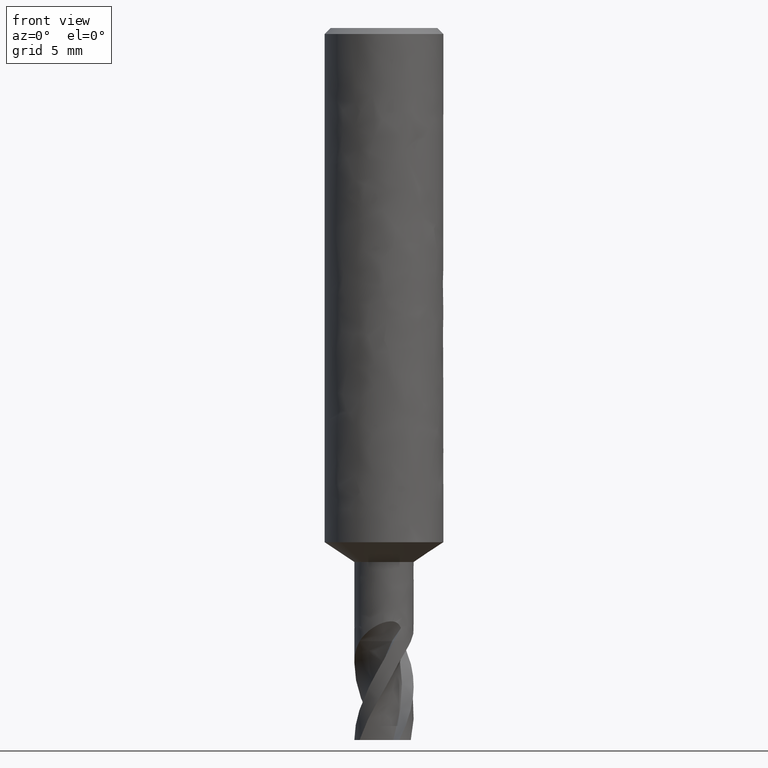
[diagram: clean part render]
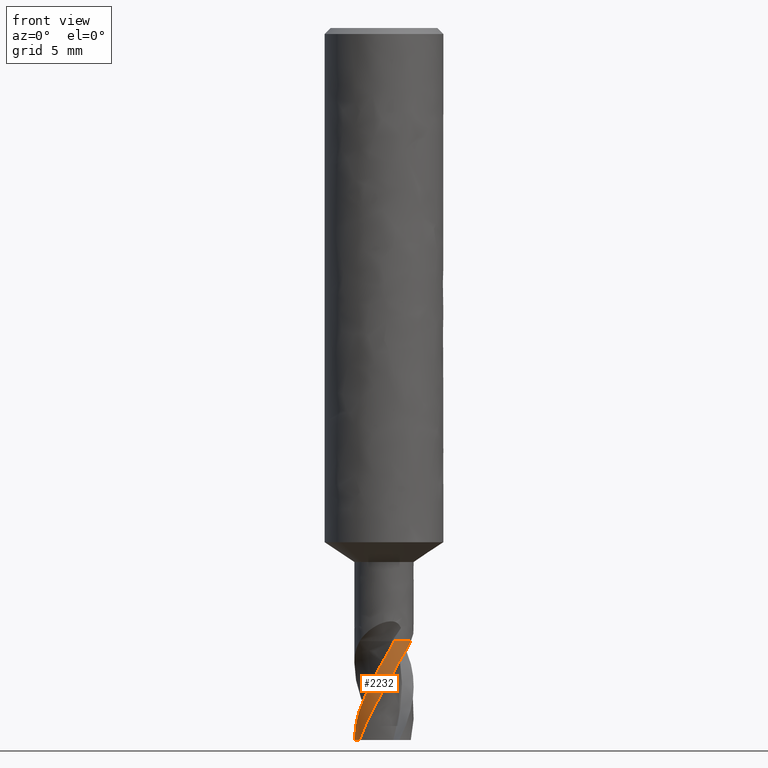
[diagram: same view with one face highlighted and labeled with its STEP entity id]
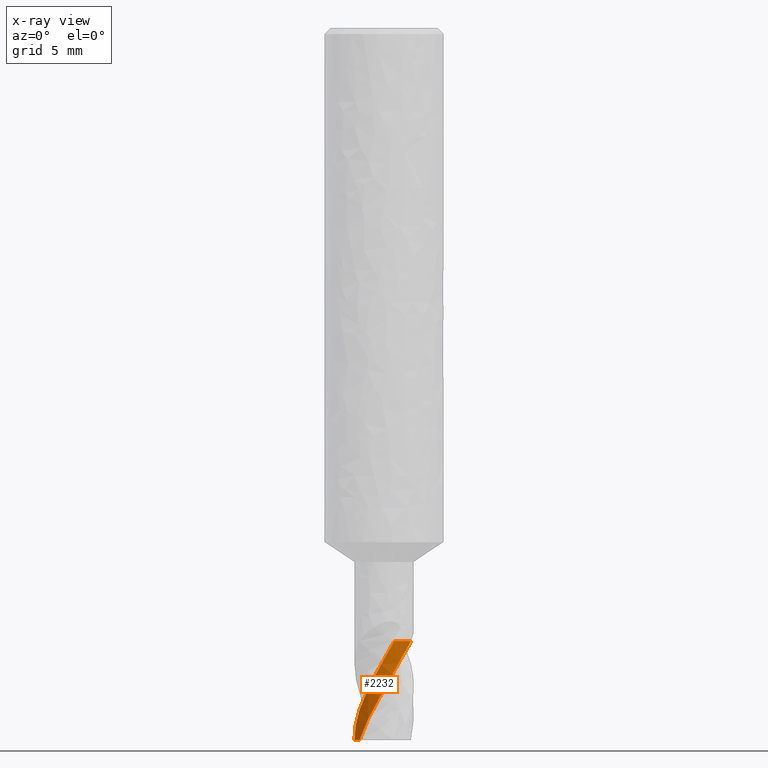
[diagram: x-ray of the same camera — body ghosted, the highlighted face saturated]
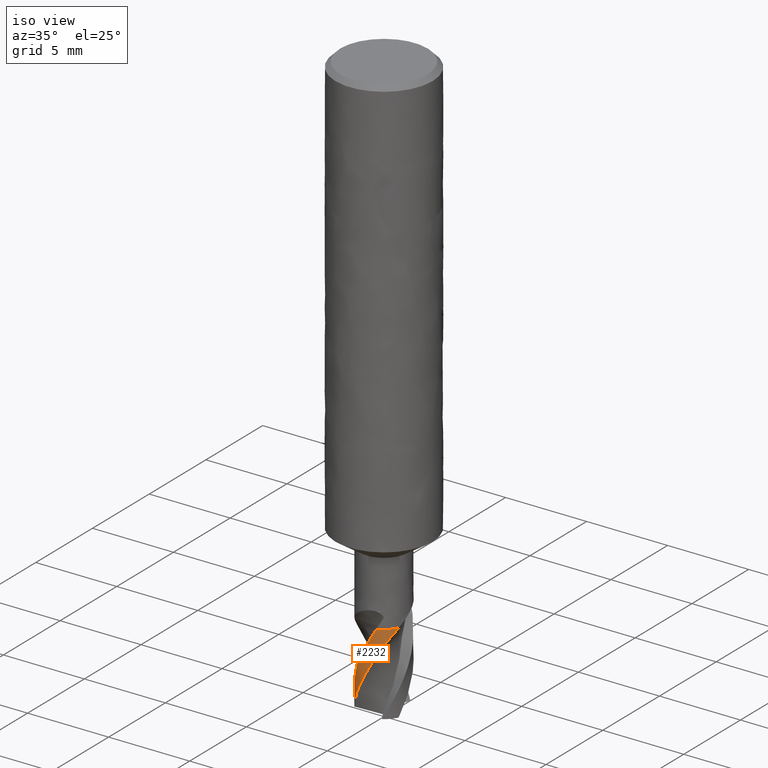
[diagram: same view with one face highlighted and labeled with its STEP entity id]
A machine part, front view. The second image highlights one B-rep face of the part: STEP entity #2232.
The next image is the same camera in x-ray: the body ghosted, the highlighted face saturated — about 0% of this face is hidden behind the body in this view.
A second angle (iso view) of the same face is appended — the face is thin or edge-on in the first view.
In plain terms, the highlighted face is a freeform B-spline surface patch.
Its self-contained STEP definition (entity closure, byte-faithful):
#1099 = VERTEX_POINT('', #1100);
#1100 = CARTESIAN_POINT('', (0.519565172584948, -1.40714321639155, -31.));
#1106 = EDGE_CURVE('', #1107, #1099, #1109, .T.);
#1107 = VERTEX_POINT('', #1108);
#1108 = CARTESIAN_POINT('', (1.36022073999418, -0.632297033434184, -31.));
#1109 = CIRCLE('', #1110, 1.5);
#1110 = AXIS2_PLACEMENT_3D('', #1111, #1112, #1113);
#1111 = CARTESIAN_POINT('', (1.16231383156294E-31, 1.8982025386784E-15, -31.));
#1112 = DIRECTION('', (3.74939945665464E-33, 6.12323399573677E-17, -1.));
#1113 = DIRECTION('', (-1., 6.12323399573677E-17, 0.));
#1208 = VERTEX_POINT('', #1209);
#1209 = CARTESIAN_POINT('', (-1.49972769564766, -0.0285803937580209, -36.));
#1215 = EDGE_CURVE('', #1099, #1208, #1216, .T.);
#1216 = B_SPLINE_CURVE_WITH_KNOTS('', 3, (#1217, #1218, #1219, #1220, #1221, #1222, #1223, #1224, #1225, #1226, #1227, #1228, #1229, #1230, #1231, #1232, #1233, #1234, #1235, #1236, #1237, #1238, #1239, #1240, #1241, #1242, #1243, #1244, #1245, #1246, #1247, #1248, #1249, #1250, #1251, #1252, #1253, #1254, #1255, #1256, #1257, #1258, #1259, #1260, #1261, #1262, #1263, #1264, #1265, #1266, #1267, #1268, #1269, #1270, #1271, #1272, #1273, #1274, #1275, #1276, #1277, #1278, #1279, #1280, #1281, #1282, #1283, #1284, #1285, #1286, #1287, #1288, #1289, #1290, #1291, #1292, #1293, #1294, #1295, #1296, #1297, #1298, #1299, #1300, #1301, #1302, #1303, #1304, #1305, #1306, #1307, #1308, #1309, #1310), .UNSPECIFIED., .F., .U., (4, 3, 3, 3, 3, 3, 3, 3, 3, 3, 3, 3, 3, 3, 3, 3, 3, 3, 3, 3, 3, 3, 3, 3, 3, 3, 3, 3, 3, 3, 3, 4), (0.768501381046993, 0.787621328248756, 0.984491242477379, 1.1813511806186, 1.37819928503718, 1.57503737531839, 1.77186371725637, 1.8302237921103, 1.85617344529091, 2.05363069041709, 2.18515290317052, 2.38257741871908, 2.47022110331767, 2.60171329868226, 2.73315036704322, 2.79155226759369, 2.98878190034154, 3.12021588305204, 3.31736340760702, 3.44877068611248, 3.64589925562191, 3.77729199887385, 4.0729336341522, 4.36850125245069, 4.66398190823514, 4.95937529253543, 5.25468283164491, 5.54990303473267, 5.84503520668598, 6.14007769343906, 6.4350286158841, 6.5274034703753), .UNSPECIFIED.);
#1217 = CARTESIAN_POINT('', (0.519565172584948, -1.40714321639155, -31.));
#1218 = CARTESIAN_POINT('', (0.516598008742798, -1.40823879427998, -31.0055330643651));
#1219 = CARTESIAN_POINT('', (0.513627261036039, -1.40932503037065, -31.0110663177041));
#1220 = CARTESIAN_POINT('', (0.510653202697279, -1.41040182450783, -31.0165993679323));
#1221 = CARTESIAN_POINT('', (0.480030596688795, -1.42148911293971, -31.0735708183426));
#1222 = CARTESIAN_POINT('', (0.449042877992487, -1.43157991937438, -31.1305498089965));
#1223 = CARTESIAN_POINT('', (0.417765001046068, -1.44064999354492, -31.1875221381892));
#1224 = CARTESIAN_POINT('', (0.386488709059115, -1.44971960810306, -31.2444915803947));
#1225 = CARTESIAN_POINT('', (0.35491168321503, -1.45777167028656, -31.3014677794902));
#1226 = CARTESIAN_POINT('', (0.323110171113776, -1.46478661153181, -31.3584365088185));
#1227 = CARTESIAN_POINT('', (0.291310570677624, -1.47180113109212, -31.41540181362));
#1228 = CARTESIAN_POINT('', (0.259280105780983, -1.47778016346086, -31.4723756120965));
#1229 = CARTESIAN_POINT('', (0.227091902847815, -1.48271010911134, -31.5293412091837));
#1230 = CARTESIAN_POINT('', (0.194905337406087, -1.48763980396362, -31.5863039082938));
#1231 = CARTESIAN_POINT('', (0.162552880997185, -1.49152162906105, -31.6432734159033));
#1232 = CARTESIAN_POINT('', (0.130114760470109, -1.49434606069272, -31.7002367102146));
#1233 = CARTESIAN_POINT('', (0.0976785760224425, -1.4971703237473, -31.7571966046538));
#1234 = CARTESIAN_POINT('', (0.0651466679156231, -1.49893833661976, -31.8141642211957));
#1235 = CARTESIAN_POINT('', (0.0325932540912833, -1.49964585145554, -31.8711228620589));
#1236 = CARTESIAN_POINT('', (0.0229409908381358, -1.49985563343071, -31.8880114071166));
#1237 = CARTESIAN_POINT('', (0.0132863911575863, -1.49997222935255, -31.9049000316));
#1238 = CARTESIAN_POINT('', (0.00363152334460524, -1.49999560400629, -31.921788374612));
#1239 = CARTESIAN_POINT('', (-0.000661488134194145, -1.50000599748435, -31.9292977317376));
#1240 = CARTESIAN_POINT('', (-0.00495458293201346, -1.49999796085963, -31.9368070893563));
#1241 = CARTESIAN_POINT('', (-0.0092475742648674, -1.49997149385254, -31.9443164185497));
#1242 = CARTESIAN_POINT('', (-0.0419139931967877, -1.4997700999352, -32.0014567373416));
#1243 = CARTESIAN_POINT('', (-0.0745798008518828, -1.49850083370283, -32.0586035949255));
#1244 = CARTESIAN_POINT('', (-0.107159706427344, -1.49616736942052, -32.1157460153687));
#1245 = CARTESIAN_POINT('', (-0.12886051193511, -1.49461309682043, -32.1538074072107));
#1246 = CARTESIAN_POINT('', (-0.150525557238404, -1.4925866876458, -32.1918728458256));
#1247 = CARTESIAN_POINT('', (-0.1721296172405, -1.49009106932048, -32.2299391925449));
#1248 = CARTESIAN_POINT('', (-0.204558900404946, -1.48634496264726, -32.2870795789665));
#1249 = CARTESIAN_POINT('', (-0.236860732245523, -1.48154115446041, -32.344232920219));
#1250 = CARTESIAN_POINT('', (-0.268999143362233, -1.47568271009409, -32.401360117268));
#1251 = CARTESIAN_POINT('', (-0.283266514157529, -1.47308194063619, -32.4267208888331));
#1252 = CARTESIAN_POINT('', (-0.297503127992152, -1.47027301038832, -32.4520784957484));
#1253 = CARTESIAN_POINT('', (-0.311706359453727, -1.46725565102885, -32.4774291242238));
#1254 = CARTESIAN_POINT('', (-0.333015528445282, -1.46272869385906, -32.5154627806976));
#1255 = CARTESIAN_POINT('', (-0.354243361637961, -1.4577329487887, -32.5534891656637));
#1256 = CARTESIAN_POINT('', (-0.375315915249576, -1.45228714920995, -32.5915341889955));
#1257 = CARTESIAN_POINT('', (-0.396379634369257, -1.44684363273715, -32.6295632622694));
#1258 = CARTESIAN_POINT('', (-0.417290981154667, -1.44095082335471, -32.6676153382769));
#1259 = CARTESIAN_POINT('', (-0.438048312658804, -1.43461272675826, -32.7056742960816));
#1260 = CARTESIAN_POINT('', (-0.447271491669984, -1.43179649773154, -32.7225851683072));
#1261 = CARTESIAN_POINT('', (-0.456465626213576, -1.42889193641227, -32.7394974270955));
#1262 = CARTESIAN_POINT('', (-0.465634534965191, -1.42589778029414, -32.7564072442996));
#1263 = CARTESIAN_POINT('', (-0.496598946889024, -1.41578618621924, -32.8135135542926));
#1264 = CARTESIAN_POINT('', (-0.527281124128524, -1.40464958602337, -32.8706013520246));
#1265 = CARTESIAN_POINT('', (-0.55758896020156, -1.39251375270097, -32.9276655825345));
#1266 = CARTESIAN_POINT('', (-0.577786126047875, -1.38442642381002, -32.9656932307216));
#1267 = CARTESIAN_POINT('', (-0.597818191222467, -1.37589490385669, -33.0037170454686));
#1268 = CARTESIAN_POINT('', (-0.617645335344269, -1.36693607741089, -33.0417440912143));
#1269 = CARTESIAN_POINT('', (-0.647385531159668, -1.35349807286835, -33.0987836618056));
#1270 = CARTESIAN_POINT('', (-0.676672511168492, -1.33909567743045, -33.1558422335259));
#1271 = CARTESIAN_POINT('', (-0.705444465472539, -1.32376285872287, -33.2129005470522));
#1272 = CARTESIAN_POINT('', (-0.724622206714347, -1.31354287760605, -33.2509323595923));
#1273 = CARTESIAN_POINT('', (-0.743574668009519, -1.30290786316739, -33.2889691722817));
#1274 = CARTESIAN_POINT('', (-0.762289363522633, -1.29186490248023, -33.3270016022508));
#1275 = CARTESIAN_POINT('', (-0.79036392071051, -1.27529897806442, -33.3840553560463));
#1276 = CARTESIAN_POINT('', (-0.817912132523037, -1.25780907609524, -33.4411097403212));
#1277 = CARTESIAN_POINT('', (-0.844864039664297, -1.23943727331484, -33.4981519439888));
#1278 = CARTESIAN_POINT('', (-0.86282838153506, -1.22719185616496, -33.5361724685615));
#1279 = CARTESIAN_POINT('', (-0.880528356440532, -1.21455435555817, -33.574194559171));
#1280 = CARTESIAN_POINT('', (-0.897939790662919, -1.20154239723125, -33.6122176969641));
#1281 = CARTESIAN_POINT('', (-0.937116572870576, -1.17226470241545, -33.6977720613629));
#1282 = CARTESIAN_POINT('', (-0.974865871281235, -1.14106465692026, -33.7833556281191));
#1283 = CARTESIAN_POINT('', (-1.01099605605404, -1.10810061575796, -33.8689099072879));
#1284 = CARTESIAN_POINT('', (-1.04711719525667, -1.07514482748863, -33.9544427670469));
#1285 = CARTESIAN_POINT('', (-1.08163364989689, -1.04041295868177, -34.0400023229387));
#1286 = CARTESIAN_POINT('', (-1.11436197833337, -1.00409032524218, -34.1255371906481));
#1287 = CARTESIAN_POINT('', (-1.14708067737357, -0.967778378722687, -34.2110468921123));
#1288 = CARTESIAN_POINT('', (-1.17803343485968, -0.929852962291481, -34.296580459638));
#1289 = CARTESIAN_POINT('', (-1.20705277955805, -0.890518718141943, -34.3820887904712));
#1290 = CARTESIAN_POINT('', (-1.23606355326801, -0.851196091530805, -34.4675718660507));
#1291 = CARTESIAN_POINT('', (-1.26315841730939, -0.810443457069367, -34.5530806360299));
#1292 = CARTESIAN_POINT('', (-1.28819286356161, -0.768478461811996, -34.6385643528377));
#1293 = CARTESIAN_POINT('', (-1.31322003447549, -0.72652566213251, -34.7240232269564));
#1294 = CARTESIAN_POINT('', (-1.33620282667445, -0.683336260656685, -34.8095070134624));
#1295 = CARTESIAN_POINT('', (-1.35701804766202, -0.639141626182771, -34.8949656391797));
#1296 = CARTESIAN_POINT('', (-1.37782711263137, -0.594960062094963, -34.9803989908509));
#1297 = CARTESIAN_POINT('', (-1.39648196313864, -0.549748252607596, -35.0658574945466));
#1298 = CARTESIAN_POINT('', (-1.41288285932973, -0.503747978469632, -35.1512909233158));
#1299 = CARTESIAN_POINT('', (-1.4292788649697, -0.457761421063365, -35.2366988768582));
#1300 = CARTESIAN_POINT('', (-1.44343184502994, -0.410959978796243, -35.3221318751568));
#1301 = CARTESIAN_POINT('', (-1.45526611849859, -0.363593900320229, -35.4075398113957));
#1302 = CARTESIAN_POINT('', (-1.46709679575074, -0.316242215518085, -35.4929217937449));
#1303 = CARTESIAN_POINT('', (-1.47661707055738, -0.268298671370086, -35.5783288488748));
#1304 = CARTESIAN_POINT('', (-1.48377609867051, -0.220019292368183, -35.6637108128214));
#1305 = CARTESIAN_POINT('', (-1.4909329050309, -0.171754896523384, -35.7490662790913));
#1306 = CARTESIAN_POINT('', (-1.49573406002889, -0.123127057348932, -35.8344468952546));
#1307 = CARTESIAN_POINT('', (-1.49815398246934, -0.0743951934703049, -35.9198024857217));
#1308 = CARTESIAN_POINT('', (-1.4989118712105, -0.0591329973138855, -35.9465347643802));
#1309 = CARTESIAN_POINT('', (-1.49943653500875, -0.0438587582817177, -35.9732677993404));
#1310 = CARTESIAN_POINT('', (-1.49972769564767, -0.0285803937580211, -36.));
#2090 = EDGE_CURVE('', #2091, #1107, #2093, .T.);
#2091 = VERTEX_POINT('', #2092);
#2092 = CARTESIAN_POINT('', (-1.23449274922675, -0.852072562700247, -36.));
#2093 = B_SPLINE_CURVE_WITH_KNOTS('', 3, (#2094, #2095, #2096, #2097, #2098, #2099, #2100, #2101, #2102, #2103, #2104, #2105, #2106, #2107, #2108, #2109, #2110, #2111, #2112, #2113, #2114, #2115, #2116, #2117, #2118, #2119, #2120, #2121, #2122, #2123, #2124, #2125, #2126, #2127, #2128, #2129, #2130, #2131, #2132, #2133, #2134, #2135, #2136, #2137, #2138, #2139, #2140, #2141, #2142, #2143, #2144, #2145, #2146, #2147, #2148, #2149, #2150, #2151, #2152, #2153, #2154, #2155, #2156, #2157, #2158, #2159, #2160, #2161, #2162, #2163, #2164, #2165, #2166, #2167, #2168, #2169, #2170, #2171, #2172, #2173, #2174, #2175, #2176, #2177, #2178, #2179, #2180, #2181), .UNSPECIFIED., .F., .U., (4, 3, 3, 3, 3, 3, 3, 3, 3, 3, 3, 3, 3, 3, 3, 3, 3, 3, 3, 3, 3, 3, 3, 3, 3, 3, 3, 3, 3, 4), (0., 0.443551327460082, 0.886815208005312, 1.32979048099039, 1.62508757993182, 1.92029650650715, 2.21541123460587, 2.51043906458645, 2.80535690891399, 2.89287206786104, 2.93178663359982, 3.12912659365995, 3.32644144242942, 3.45792191154265, 3.58937974088454, 3.7208139609312, 3.8084230957714, 3.89604766281326, 3.98367620830002, 4.07129519907452, 4.26859639564497, 4.4000805600953, 4.59746002001388, 4.79487363237326, 4.99234125961448, 5.18987476159806, 5.38746919370108, 5.58512309232445, 5.78282244638992, 5.93182391505246), .UNSPECIFIED.);
#2094 = CARTESIAN_POINT('', (-1.23449274922675, -0.852072562700249, -36.));
#2095 = CARTESIAN_POINT('', (-1.19303983087478, -0.912130038295546, -35.8714134201064));
#2096 = CARTESIAN_POINT('', (-1.14712450131491, -0.969254419380716, -35.7427846002988));
#2097 = CARTESIAN_POINT('', (-1.09725835859125, -1.02275319334707, -35.6142894551085));
#2098 = CARTESIAN_POINT('', (-1.04742453201229, -1.07621729701357, -35.4858775822044));
#2099 = CARTESIAN_POINT('', (-0.993584738664941, -1.12612379572556, -35.3574274196058));
#2100 = CARTESIAN_POINT('', (-0.936360126938721, -1.1718488437846, -35.2291075320284));
#2101 = CARTESIAN_POINT('', (-0.879172773956775, -1.21754412042499, -35.1008711930803));
#2102 = CARTESIAN_POINT('', (-0.818530174369723, -1.25912291270886, -34.9725963144207));
#2103 = CARTESIAN_POINT('', (-0.755141652331049, -1.29605597290969, -34.8444524319561));
#2104 = CARTESIAN_POINT('', (-0.712885463767593, -1.3206763664112, -34.7590288901772));
#2105 = CARTESIAN_POINT('', (-0.669380627423743, -1.3432528506502, -34.6736002961151));
#2106 = CARTESIAN_POINT('', (-0.624856420414502, -1.36365481477785, -34.5882171268833));
#2107 = CARTESIAN_POINT('', (-0.580345507828723, -1.38405068711029, -34.5028594520979));
#2108 = CARTESIAN_POINT('', (-0.534786889579081, -1.40228655298752, -34.4174981681706));
#2109 = CARTESIAN_POINT('', (-0.488422609596375, -1.41825362838781, -34.3321837400999));
#2110 = CARTESIAN_POINT('', (-0.44207312403264, -1.43421560883995, -34.2468965350852));
#2111 = CARTESIAN_POINT('', (-0.394895394894266, -1.44791794092843, -34.1616025714923));
#2112 = CARTESIAN_POINT('', (-0.347148959734088, -1.45927639594282, -34.076348654278));
#2113 = CARTESIAN_POINT('', (-0.299416583768416, -1.47063150639906, -33.9911198405379));
#2114 = CARTESIAN_POINT('', (-0.25107288789056, -1.47965566708625, -33.9058885457293));
#2115 = CARTESIAN_POINT('', (-0.202344261833272, -1.4862896082877, -33.8207252862388));
#2116 = CARTESIAN_POINT('', (-0.15363380168853, -1.49292107637212, -33.735593775403));
#2117 = CARTESIAN_POINT('', (-0.104539056615796, -1.49715835123536, -33.650461524115));
#2118 = CARTESIAN_POINT('', (-0.0554651758842861, -1.49897418732455, -33.5652998167408));
#2119 = CARTESIAN_POINT('', (-0.0409027865444364, -1.49951302614704, -33.5400285742561));
#2120 = CARTESIAN_POINT('', (-0.026341186406192, -1.49983919531586, -33.5147514471175));
#2121 = CARTESIAN_POINT('', (-0.0117996314296986, -1.49995358884804, -33.489462727888));
#2122 = CARTESIAN_POINT('', (-0.00533357110500454, -1.50000445517431, -33.4782178242765));
#2123 = CARTESIAN_POINT('', (0.00112865298420813, -1.50001347233947, -33.4669704465807));
#2124 = CARTESIAN_POINT('', (0.00758543169413701, -1.49998082028605, -33.4557201433283));
#2125 = CARTESIAN_POINT('', (0.0403284529393835, -1.49981523820143, -33.3986686421139));
#2126 = CARTESIAN_POINT('', (0.0729318840855446, -1.49857540633824, -33.341529901001));
#2127 = CARTESIAN_POINT('', (0.105214316107934, -1.49630543261932, -33.2842612494494));
#2128 = CARTESIAN_POINT('', (0.137492640226716, -1.49403574775202, -33.2269998852701));
#2129 = CARTESIAN_POINT('', (0.169479118790942, -1.49073836927154, -33.1696054187544));
#2130 = CARTESIAN_POINT('', (0.20119085816496, -1.48644617749551, -33.1121437081932));
#2131 = CARTESIAN_POINT('', (0.222321930637684, -1.48358608160432, -33.073854179008));
#2132 = CARTESIAN_POINT('', (0.243337425631322, -1.48028275741953, -33.0355312838727));
#2133 = CARTESIAN_POINT('', (0.264222287505547, -1.47654548957536, -32.9971822840013));
#2134 = CARTESIAN_POINT('', (0.285103553191681, -1.47280886525558, -32.9588398874878));
#2135 = CARTESIAN_POINT('', (0.305842866847965, -1.46863943067573, -32.9204595466357));
#2136 = CARTESIAN_POINT('', (0.326354594489351, -1.4640671701311, -32.882008376939));
#2137 = CARTESIAN_POINT('', (0.346862638307293, -1.459495730746, -32.8435641129171));
#2138 = CARTESIAN_POINT('', (0.367145382709754, -1.45452127117127, -32.8050446019684));
#2139 = CARTESIAN_POINT('', (0.387129406072301, -1.44918281212348, -32.7664236358914));
#2140 = CARTESIAN_POINT('', (0.400450008551606, -1.44562439500509, -32.7406803445059));
#2141 = CARTESIAN_POINT('', (0.413624355059637, -1.44190912103902, -32.7148824417564));
#2142 = CARTESIAN_POINT('', (0.42673481008369, -1.43801856798264, -32.6890793915464));
#2143 = CARTESIAN_POINT('', (0.439847574492331, -1.43412732961188, -32.6632717961725));
#2144 = CARTESIAN_POINT('', (0.452901715052292, -1.43005917779365, -32.6374602880305));
#2145 = CARTESIAN_POINT('', (0.465976706948324, -1.42578599676866, -32.6116939763751));
#2146 = CARTESIAN_POINT('', (0.479052292492198, -1.42151262172713, -32.585926494844));
#2147 = CARTESIAN_POINT('', (0.492149649486556, -1.4170337241178, -32.5602028437693));
#2148 = CARTESIAN_POINT('', (0.505326343025729, -1.41231911657537, -32.5345641425715));
#2149 = CARTESIAN_POINT('', (0.518501599823999, -1.40760502309738, -32.5089282369287));
#2150 = CARTESIAN_POINT('', (0.531758767127445, -1.40265409565929, -32.4833761452602));
#2151 = CARTESIAN_POINT('', (0.545126824090271, -1.39743935312315, -32.4579377640131));
#2152 = CARTESIAN_POINT('', (0.575229129666646, -1.38569675105605, -32.400655398461));
#2153 = CARTESIAN_POINT('', (0.605871059588303, -1.37262304818153, -32.3439061973706));
#2154 = CARTESIAN_POINT('', (0.636889861714538, -1.35807632482318, -32.2877676752867));
#2155 = CARTESIAN_POINT('', (0.657561207609604, -1.34838219321369, -32.2503562109977));
#2156 = CARTESIAN_POINT('', (0.678407811237406, -1.33803004347913, -32.2132043786446));
#2157 = CARTESIAN_POINT('', (0.699371607147727, -1.3269812941848, -32.1763351124587));
#2158 = CARTESIAN_POINT('', (0.730841729286928, -1.31039529557722, -32.1209882508972));
#2159 = CARTESIAN_POINT('', (0.762581574490516, -1.29223392102826, -32.0662391043169));
#2160 = CARTESIAN_POINT('', (0.794311987336948, -1.27242621270266, -32.0121135593916));
#2161 = CARTESIAN_POINT('', (0.826047890476274, -1.25261507706204, -31.9579786491582));
#2162 = CARTESIAN_POINT('', (0.857799689226091, -1.23114145320543, -31.904430352105));
#2163 = CARTESIAN_POINT('', (0.889295015966506, -1.20795462438666, -31.8515091605816));
#2164 = CARTESIAN_POINT('', (0.920798960229959, -1.18476145135585, -31.7985734891452));
#2165 = CARTESIAN_POINT('', (0.95206945928654, -1.15983713298719, -31.7462221174588));
#2166 = CARTESIAN_POINT('', (0.982833705854242, -1.13315396422411, -31.6945096747811));
#2167 = CARTESIAN_POINT('', (1.01360821530323, -1.10646189401783, -31.6427799809525));
#2168 = CARTESIAN_POINT('', (1.04390604075372, -1.07798305501051, -31.5916486777852));
#2169 = CARTESIAN_POINT('', (1.07343547447297, -1.04772910723287, -31.54116888524));
#2170 = CARTESIAN_POINT('', (1.10297401668219, -1.01746582748555, -31.49067352197));
#2171 = CARTESIAN_POINT('', (1.13177105321237, -0.985398329939296, -31.440780102177));
#2172 = CARTESIAN_POINT('', (1.15953607441846, -0.951565075085368, -31.3915603119286));
#2173 = CARTESIAN_POINT('', (1.18730945157457, -0.917721638031887, -31.3423257088658));
#2174 = CARTESIAN_POINT('', (1.21408053377934, -0.882073369317823, -31.2937143741267));
#2175 = CARTESIAN_POINT('', (1.23954631102285, -0.844704056359178, -31.245799726185));
#2176 = CARTESIAN_POINT('', (1.26501794475677, -0.807326149395289, -31.1978740590752));
#2177 = CARTESIAN_POINT('', (1.2892140575138, -0.768181841587592, -31.1505884044868));
#2178 = CARTESIAN_POINT('', (1.31183571834059, -0.727383700728741, -31.1040421502241));
#2179 = CARTESIAN_POINT('', (1.32888514524797, -0.696635077722838, -31.0689613059863));
#2180 = CARTESIAN_POINT('', (1.34506147621417, -0.664908201771682, -31.0342568946108));
#2181 = CARTESIAN_POINT('', (1.36022073999418, -0.632297033434184, -31.));
#2232 = ADVANCED_FACE('', (#2233), #2245, .T.);
#2233 = FACE_OUTER_BOUND('', #2234, .T.);
#2234 = EDGE_LOOP('', (#2235, #2236, #2237, #2244));
#2235 = ORIENTED_EDGE('', *, *, #1106, .T.);
#2236 = ORIENTED_EDGE('', *, *, #1215, .T.);
#2237 = ORIENTED_EDGE('', *, *, #2238, .F.);
#2238 = EDGE_CURVE('', #2091, #1208, #2239, .T.);
#2239 = CIRCLE('', #2240, 1.5);
#2240 = AXIS2_PLACEMENT_3D('', #2241, #2242, #2243);
#2241 = CARTESIAN_POINT('', (1.34978380439567E-31, 2.20436423846524E-15, -36.));
#2242 = DIRECTION('', (3.74939945665464E-33, 6.12323399573677E-17, -1.));
#2243 = DIRECTION('', (-1., 6.12323399573677E-17, 0.));
#2244 = ORIENTED_EDGE('', *, *, #2090, .T.);
#2245 = (
   BOUNDED_SURFACE ()
   B_SPLINE_SURFACE (2, 1, ((#2246, #2247), (#2248, #2249), (#2250, #2251), (#2252, #2253), (#2254, #2255), (#2256, #2257), (#2258, #2259), (#2260, #2261), (#2262, #2263)), .UNSPECIFIED., .F., .F., .U.)
   B_SPLINE_SURFACE_WITH_KNOTS ((3, 2, 2, 2, 3), (2, 2), (2.21136306771138, 2.35619449019235, 4.71238898038469, 7.06858347057704, 9.42477796076938), (0.444444444444444, 1.), .UNSPECIFIED.)
   GEOMETRIC_REPRESENTATION_ITEM ()
   RATIONAL_B_SPLINE_SURFACE (((0.966205977522131, 0.966205977522131), (0.981996332776282, 0.981996332776282), (1., 1.), (0.707106781186548, 0.707106781186548), (1., 1.), (0.707106781186548, 0.707106781186548), (1., 1.), (0.707106781186548, 0.707106781186548), (1., 1.)))
   REPRESENTATION_ITEM ('')
   SURFACE ()
);
#2246 = CARTESIAN_POINT('', (-0.132525076305563, 1.49413423230653, -31.));
#2247 = CARTESIAN_POINT('', (-0.132525076305563, 1.49413423230653, -36.));
#2248 = CARTESIAN_POINT('', (-0.0663923521909736, 1.5, -31.));
#2249 = CARTESIAN_POINT('', (-0.0663923521909736, 1.5, -36.));
#2250 = CARTESIAN_POINT('', (1.23259516440783E-31, 1.5, -31.));
#2251 = CARTESIAN_POINT('', (1.4791141972894E-31, 1.5, -36.));
#2252 = CARTESIAN_POINT('', (1.5, 1.5, -31.));
#2253 = CARTESIAN_POINT('', (1.5, 1.5, -36.));
#2254 = CARTESIAN_POINT('', (1.5, 1.99005104861445E-15, -31.));
#2255 = CARTESIAN_POINT('', (1.5, 2.29621274840129E-15, -36.));
#2256 = CARTESIAN_POINT('', (1.5, -1.5, -31.));
#2257 = CARTESIAN_POINT('', (1.5, -1.5, -36.));
#2258 = CARTESIAN_POINT('', (1.83697019872103E-16, -1.5, -31.));
#2259 = CARTESIAN_POINT('', (1.83697019872103E-16, -1.5, -36.));
#2260 = CARTESIAN_POINT('', (-1.5, -1.5, -31.));
#2261 = CARTESIAN_POINT('', (-1.5, -1.5, -36.));
#2262 = CARTESIAN_POINT('', (-1.5, 1.99005104861445E-15, -31.));
#2263 = CARTESIAN_POINT('', (-1.5, 2.29621274840129E-15, -36.));